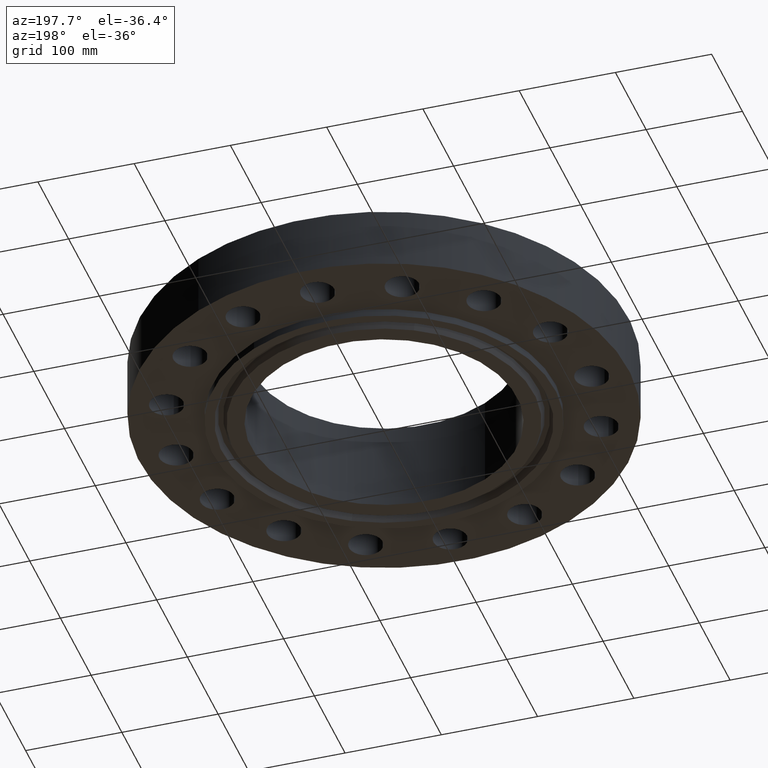
[diagram: clean part render]
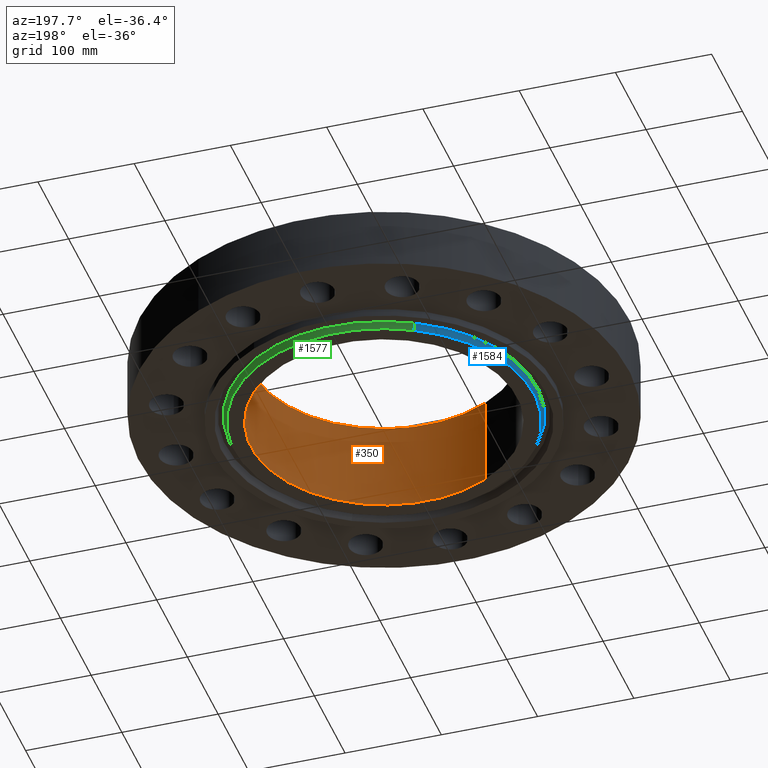
[diagram: same view with three faces highlighted in distinct colors, each labeled with its STEP entity id]
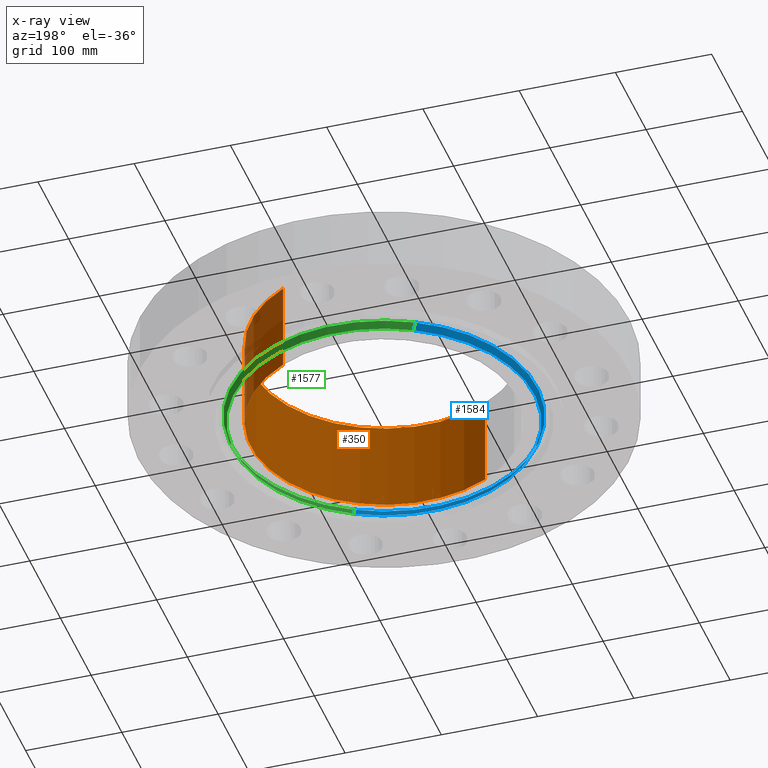
[diagram: x-ray of the same camera — body ghosted, the three highlighted faces saturated]
A machine part, auxiliary view with three faces highlighted in distinct colors.
The next image is the same camera in x-ray (body ghosted, the three faces saturated) — at least one of them is partly hidden behind the body in this view.
Their STEP definitions:

[orange] entity #350 — the highlighted cylindrical surface (partial cylindrical patch) has radius 138.176 mm, axis along (0, 0, -1).
#312=AXIS2_PLACEMENT_3D('Circle Axis2P3D',#310,#311,$) ;
#323=AXIS2_PLACEMENT_3D('Cylinder Axis2P3D',#320,#321,#322) ;
#334=AXIS2_PLACEMENT_3D('Circle Axis2P3D',#332,#333,$) ;
#305=CARTESIAN_POINT('Vertex',(-2.60807493002,-4.7740491367,3.38000000001)) ;
#307=CARTESIAN_POINT('Vertex',(2.60807493002,4.7740491367,3.38000000001)) ;
#310=CARTESIAN_POINT('Axis2P3D Location',(0.,0.,3.38000000001)) ;
#320=CARTESIAN_POINT('Axis2P3D Location',(0.,0.,1.53375000001)) ;
#325=CARTESIAN_POINT('Line Origine',(2.60807493002,4.7740491367,1.53375000001)) ;
#329=CARTESIAN_POINT('Vertex',(2.60807493002,4.7740491367,-0.312500000001)) ;
#332=CARTESIAN_POINT('Axis2P3D Location',(0.,0.,-0.312500000001)) ;
#336=CARTESIAN_POINT('Vertex',(-2.60807493002,-4.7740491367,-0.312500000001)) ;
#339=CARTESIAN_POINT('Line Origine',(-2.60807493002,-4.7740491367,1.53375000001)) ;
#311=DIRECTION('Axis2P3D Direction',(0.,0.,-0.0393700787402)) ;
#321=DIRECTION('Axis2P3D Direction',(0.,0.,-0.0393700787402)) ;
#322=DIRECTION('Axis2P3D XDirection',(-0.0188750212049,-0.0345504945626,0.)) ;
#326=DIRECTION('Vector Direction',(0.,0.,-0.0393700787402)) ;
#333=DIRECTION('Axis2P3D Direction',(0.,0.,-0.0393700787402)) ;
#340=DIRECTION('Vector Direction',(0.,0.,-0.0393700787402)) ;
#327=VECTOR('Line Direction',#326,0.0393700787402) ;
#341=VECTOR('Line Direction',#340,0.0393700787402) ;
#345=ORIENTED_EDGE('',*,*,#314,.F.) ;
#346=ORIENTED_EDGE('',*,*,#331,.T.) ;
#347=ORIENTED_EDGE('',*,*,#338,.T.) ;
#348=ORIENTED_EDGE('',*,*,#343,.F.) ;
#350=ADVANCED_FACE('PartBody',(#349),#324,.F.) ;
#313=CIRCLE('generated circle',#312,5.44000000002) ;
#335=CIRCLE('generated circle',#334,5.44000000002) ;
#324=CYLINDRICAL_SURFACE('generated cylinder',#323,5.44000000002) ;
#314=EDGE_CURVE('',#308,#306,#313,.T.) ;
#331=EDGE_CURVE('',#308,#330,#328,.T.) ;
#338=EDGE_CURVE('',#330,#337,#335,.T.) ;
#343=EDGE_CURVE('',#306,#337,#342,.T.) ;
#344=EDGE_LOOP('',(#345,#346,#347,#348)) ;
#349=FACE_OUTER_BOUND('',#344,.T.) ;
#328=LINE('Line',#325,#327) ;
#342=LINE('Line',#339,#341) ;
#306=VERTEX_POINT('',#305) ;
#308=VERTEX_POINT('',#307) ;
#330=VERTEX_POINT('',#329) ;
#337=VERTEX_POINT('',#336) ;

[blue] entity #1584 — the highlighted conical surface has half-angle 23 deg.
#1392=AXIS2_PLACEMENT_3D('Circle Axis2P3D',#1390,#1391,$) ;
#1546=AXIS2_PLACEMENT_3D('Circle Axis2P3D',#1544,#1545,$) ;
#1559=AXIS2_PLACEMENT_3D('Cone Axis2P3D',#1556,#1557,#1558) ;
#1385=CARTESIAN_POINT('Vertex',(-2.943972448,5.38890541913,-0.312500000001)) ;
#1387=CARTESIAN_POINT('Vertex',(2.943972448,-5.38890541913,-0.312500000001)) ;
#1390=CARTESIAN_POINT('Axis2P3D Location',(5.59482469102E-016,0.,-0.312500000001)) ;
#1522=CARTESIAN_POINT('Vertex',(3.00369282239,-5.49822283118,-0.0190396522348)) ;
#1529=CARTESIAN_POINT('Vertex',(-3.00369282239,5.49822283118,-0.0190396522348)) ;
#1544=CARTESIAN_POINT('Axis2P3D Location',(0.,0.,-0.0190396522348)) ;
#1556=CARTESIAN_POINT('Axis2P3D Location',(0.,0.,-0.372500000001)) ;
#1561=CARTESIAN_POINT('Line Origine',(-2.9738326352,5.44356412516,-0.165769826118)) ;
#1566=CARTESIAN_POINT('Line Origine',(2.9738326352,-5.44356412516,-0.165769826118)) ;
#1391=DIRECTION('Axis2P3D Direction',(0.,0.,-0.0393700787402)) ;
#1545=DIRECTION('Axis2P3D Direction',(0.,0.,0.0393700787402)) ;
#1557=DIRECTION('Axis2P3D Direction',(0.,0.,0.0393700787402)) ;
#1558=DIRECTION('Axis2P3D XDirection',(-0.0188750212049,0.0345504945626,0.)) ;
#1562=DIRECTION('Vector Direction',(-0.00737505833565,0.0134999537303,0.0362403485611)) ;
#1567=DIRECTION('Vector Direction',(0.00737505833565,-0.0134999537303,0.0362403485611)) ;
#1563=VECTOR('Line Direction',#1562,0.0393700787402) ;
#1568=VECTOR('Line Direction',#1567,0.0393700787402) ;
#1579=ORIENTED_EDGE('',*,*,#1570,.F.) ;
#1580=ORIENTED_EDGE('',*,*,#1548,.F.) ;
#1581=ORIENTED_EDGE('',*,*,#1565,.T.) ;
#1582=ORIENTED_EDGE('',*,*,#1394,.F.) ;
#1584=ADVANCED_FACE('PartBody',(#1583),#1560,.T.) ;
#1393=CIRCLE('generated circle',#1392,6.14062500002) ;
#1547=CIRCLE('generated circle',#1546,6.26519152721) ;
#1560=CONICAL_SURFACE('Cone',#1559,6.11515651105,0.401425727959) ;
#1394=EDGE_CURVE('',#1388,#1386,#1393,.T.) ;
#1548=EDGE_CURVE('',#1530,#1523,#1547,.T.) ;
#1565=EDGE_CURVE('',#1530,#1386,#1564,.F.) ;
#1570=EDGE_CURVE('',#1523,#1388,#1569,.F.) ;
#1578=EDGE_LOOP('',(#1579,#1580,#1581,#1582)) ;
#1583=FACE_OUTER_BOUND('',#1578,.T.) ;
#1564=LINE('Line',#1561,#1563) ;
#1569=LINE('Line',#1566,#1568) ;
#1386=VERTEX_POINT('',#1385) ;
#1388=VERTEX_POINT('',#1387) ;
#1523=VERTEX_POINT('',#1522) ;
#1530=VERTEX_POINT('',#1529) ;

[green] entity #1577 — the highlighted conical surface has half-angle 23 deg.
#1383=AXIS2_PLACEMENT_3D('Circle Axis2P3D',#1381,#1382,$) ;
#1527=AXIS2_PLACEMENT_3D('Circle Axis2P3D',#1525,#1526,$) ;
#1559=AXIS2_PLACEMENT_3D('Cone Axis2P3D',#1556,#1557,#1558) ;
#1381=CARTESIAN_POINT('Axis2P3D Location',(0.,-1.1189649382E-015,-0.312500000001)) ;
#1385=CARTESIAN_POINT('Vertex',(-2.943972448,5.38890541913,-0.312500000001)) ;
#1387=CARTESIAN_POINT('Vertex',(2.943972448,-5.38890541913,-0.312500000001)) ;
#1522=CARTESIAN_POINT('Vertex',(3.00369282239,-5.49822283118,-0.0190396522348)) ;
#1525=CARTESIAN_POINT('Axis2P3D Location',(0.,0.,-0.0190396522348)) ;
#1529=CARTESIAN_POINT('Vertex',(-3.00369282239,5.49822283118,-0.0190396522348)) ;
#1556=CARTESIAN_POINT('Axis2P3D Location',(0.,0.,-0.372500000001)) ;
#1561=CARTESIAN_POINT('Line Origine',(-2.9738326352,5.44356412516,-0.165769826118)) ;
#1566=CARTESIAN_POINT('Line Origine',(2.9738326352,-5.44356412516,-0.165769826118)) ;
#1382=DIRECTION('Axis2P3D Direction',(0.,0.,-0.0393700787402)) ;
#1526=DIRECTION('Axis2P3D Direction',(0.,0.,0.0393700787402)) ;
#1557=DIRECTION('Axis2P3D Direction',(0.,0.,0.0393700787402)) ;
#1558=DIRECTION('Axis2P3D XDirection',(-0.0188750212049,0.0345504945626,0.)) ;
#1562=DIRECTION('Vector Direction',(-0.00737505833565,0.0134999537303,0.0362403485611)) ;
#1567=DIRECTION('Vector Direction',(0.00737505833565,-0.0134999537303,0.0362403485611)) ;
#1563=VECTOR('Line Direction',#1562,0.0393700787402) ;
#1568=VECTOR('Line Direction',#1567,0.0393700787402) ;
#1572=ORIENTED_EDGE('',*,*,#1565,.F.) ;
#1573=ORIENTED_EDGE('',*,*,#1531,.F.) ;
#1574=ORIENTED_EDGE('',*,*,#1570,.T.) ;
#1575=ORIENTED_EDGE('',*,*,#1389,.F.) ;
#1577=ADVANCED_FACE('PartBody',(#1576),#1560,.T.) ;
#1384=CIRCLE('generated circle',#1383,6.14062500002) ;
#1528=CIRCLE('generated circle',#1527,6.26519152721) ;
#1560=CONICAL_SURFACE('Cone',#1559,6.11515651105,0.401425727959) ;
#1389=EDGE_CURVE('',#1386,#1388,#1384,.T.) ;
#1531=EDGE_CURVE('',#1523,#1530,#1528,.T.) ;
#1565=EDGE_CURVE('',#1530,#1386,#1564,.F.) ;
#1570=EDGE_CURVE('',#1523,#1388,#1569,.F.) ;
#1571=EDGE_LOOP('',(#1572,#1573,#1574,#1575)) ;
#1576=FACE_OUTER_BOUND('',#1571,.T.) ;
#1564=LINE('Line',#1561,#1563) ;
#1569=LINE('Line',#1566,#1568) ;
#1386=VERTEX_POINT('',#1385) ;
#1388=VERTEX_POINT('',#1387) ;
#1523=VERTEX_POINT('',#1522) ;
#1530=VERTEX_POINT('',#1529) ;